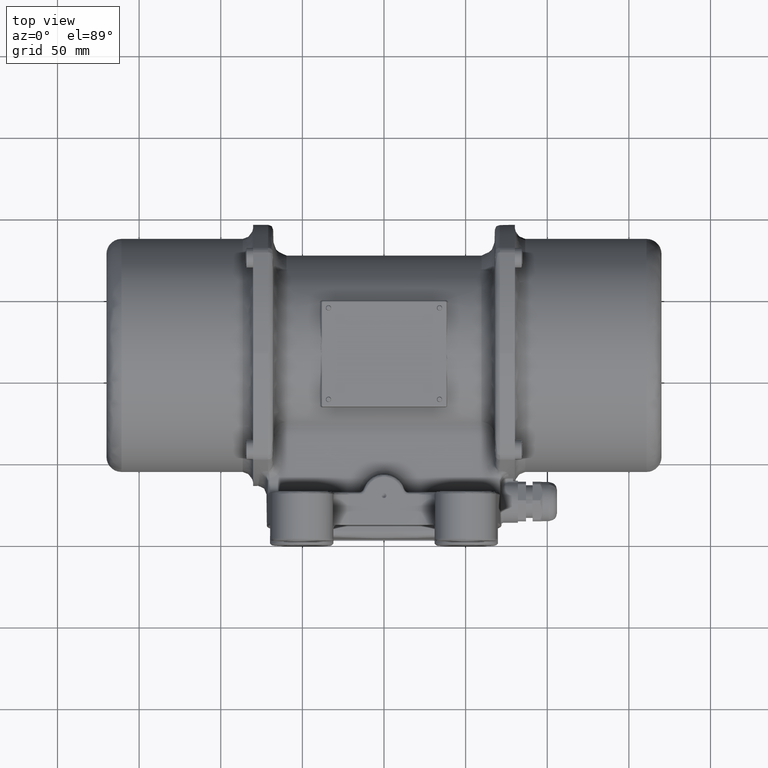
[diagram: clean part render]
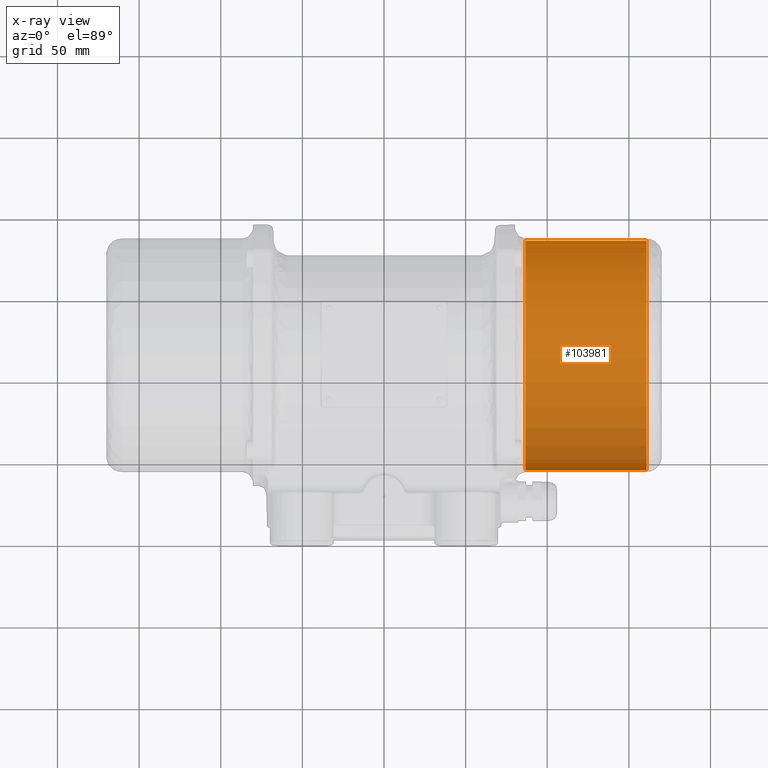
[diagram: x-ray — body ghosted, one internal face saturated and labeled with its STEP entity id]
A machine part, top view, then the same camera in x-ray: the body is ghosted and one INTERNAL B-rep face — a face not visible from any outside direction — is saturated and labeled: STEP entity #103981.
In plain terms, the highlighted cylindrical surface (partial cylindrical patch) has radius 70.2 mm, axis along (1, -0, 0).
Its self-contained STEP definition (entity closure, byte-faithful):
#4532 = FACE_OUTER_BOUND ( 'NONE', #138589, .T. ) ;
#7753 = CARTESIAN_POINT ( 'NONE',  ( 86.49999999999700200, 185.2000000000000200, 6.536700210212234800E-013 ) ) ;
#9122 = VERTEX_POINT ( 'NONE', #100304 ) ;
#11114 = VECTOR ( 'NONE', #100150, 1000.000000000000000 ) ;
#19618 = VERTEX_POINT ( 'NONE', #31016 ) ;
#21352 = EDGE_CURVE ( 'NONE', #82985, #23983, #145396, .T. ) ;
#23051 = DIRECTION ( 'NONE',  ( 1.000000000000000000, -2.857509198010475400E-015, 1.925929944387149900E-034 ) ) ;
#23983 = VERTEX_POINT ( 'NONE', #25182 ) ;
#25182 = CARTESIAN_POINT ( 'NONE',  ( 160.7999999999966900, 185.2000000000000200, 6.536700210212234800E-013 ) ) ;
#27346 = VECTOR ( 'NONE', #95946, 1000.000000000000000 ) ;
#31016 = CARTESIAN_POINT ( 'NONE',  ( 160.7999999999963200, 44.80000000000000400, 6.622670415512378900E-013 ) ) ;
#33855 = AXIS2_PLACEMENT_3D ( 'NONE', #101549, #23051, #135641 ) ;
#36535 = CARTESIAN_POINT ( 'NONE',  ( 169.9999999999965000, 115.0000000000000000, 6.622670415512378900E-013 ) ) ;
#41458 = AXIS2_PLACEMENT_3D ( 'NONE', #36535, #46886, #91878 ) ;
#46886 = DIRECTION ( 'NONE',  ( 1.000000000000000000, -2.857509198010475400E-015, 1.925929944387149900E-034 ) ) ;
#51448 = CARTESIAN_POINT ( 'NONE',  ( 169.9999999999963300, 44.80000000000000400, 6.622670415512378900E-013 ) ) ;
#52857 = CIRCLE ( 'NONE', #33855, 70.20000000000000300 ) ;
#59892 = ORIENTED_EDGE ( 'NONE', *, *, #116431, .F. ) ;
#68280 = ORIENTED_EDGE ( 'NONE', *, *, #21352, .F. ) ;
#77418 = DIRECTION ( 'NONE',  ( -2.767649990162427200E-015, -1.000000000000000000, 0.0000000000000000000 ) ) ;
#82985 = VERTEX_POINT ( 'NONE', #7753 ) ;
#87374 = CYLINDRICAL_SURFACE ( 'NONE', #41458, 70.20000000000000300 ) ;
#91878 = DIRECTION ( 'NONE',  ( -2.767649990162427200E-015, -1.000000000000000000, 0.0000000000000000000 ) ) ;
#95946 = DIRECTION ( 'NONE',  ( 1.000000000000000000, -2.857509198010475400E-015, 1.925929944387149900E-034 ) ) ;
#97475 = ORIENTED_EDGE ( 'NONE', *, *, #136735, .F. ) ;
#100150 = DIRECTION ( 'NONE',  ( 1.000000000000000000, -2.857509198010475400E-015, 1.925929944387149900E-034 ) ) ;
#100304 = CARTESIAN_POINT ( 'NONE',  ( 86.49999999999660400, 44.80000000000000400, 6.622670415512378900E-013 ) ) ;
#100637 = CARTESIAN_POINT ( 'NONE',  ( 160.7999999999964900, 115.0000000000000000, 6.622670415512378900E-013 ) ) ;
#101549 = CARTESIAN_POINT ( 'NONE',  ( 86.49999999999680300, 115.0000000000000000, 6.622670415512378900E-013 ) ) ;
#103981 = ADVANCED_FACE ( 'NONE', ( #4532 ), #87374, .F. ) ;
#104568 = ORIENTED_EDGE ( 'NONE', *, *, #129476, .T. ) ;
#116431 = EDGE_CURVE ( 'NONE', #23983, #19618, #138701, .T. ) ;
#123366 = DIRECTION ( 'NONE',  ( -1.000000000000000000, 2.857509198010475400E-015, -1.925929944387149900E-034 ) ) ;
#129476 = EDGE_CURVE ( 'NONE', #9122, #19618, #142073, .T. ) ;
#131448 = AXIS2_PLACEMENT_3D ( 'NONE', #100637, #123366, #77418 ) ;
#135641 = DIRECTION ( 'NONE',  ( 2.965339275174028900E-015, 1.000000000000000000, 0.0000000000000000000 ) ) ;
#136735 = EDGE_CURVE ( 'NONE', #9122, #82985, #52857, .T. ) ;
#138589 = EDGE_LOOP ( 'NONE', ( #68280, #97475, #104568, #59892 ) ) ;
#138701 = CIRCLE ( 'NONE', #131448, 70.20000000000000300 ) ;
#142073 = LINE ( 'NONE', #51448, #27346 ) ;
#143627 = CARTESIAN_POINT ( 'NONE',  ( 169.9999999999967000, 185.2000000000000200, 6.536700210212234800E-013 ) ) ;
#145396 = LINE ( 'NONE', #143627, #11114 ) ;